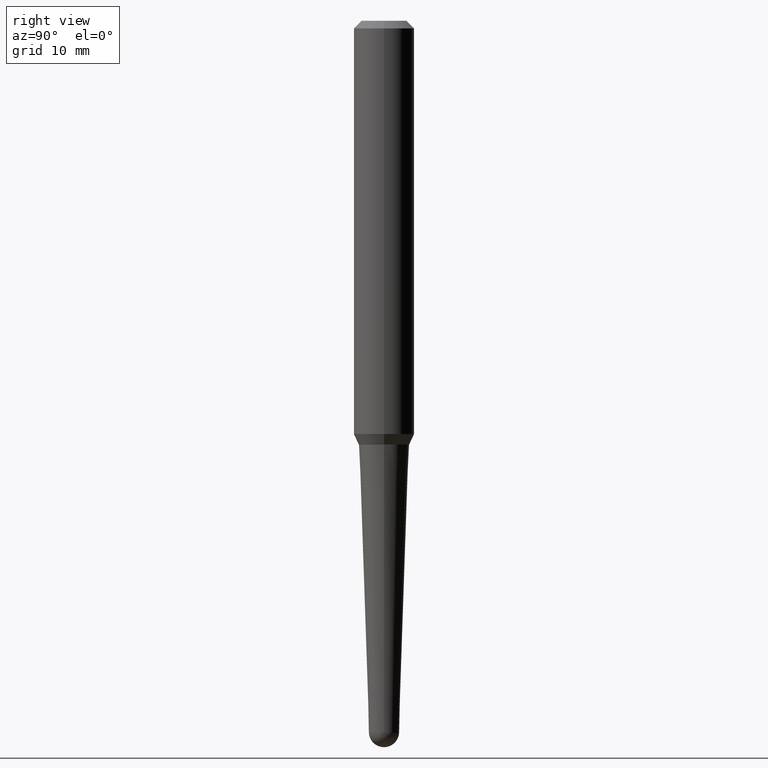
[diagram: clean part render]
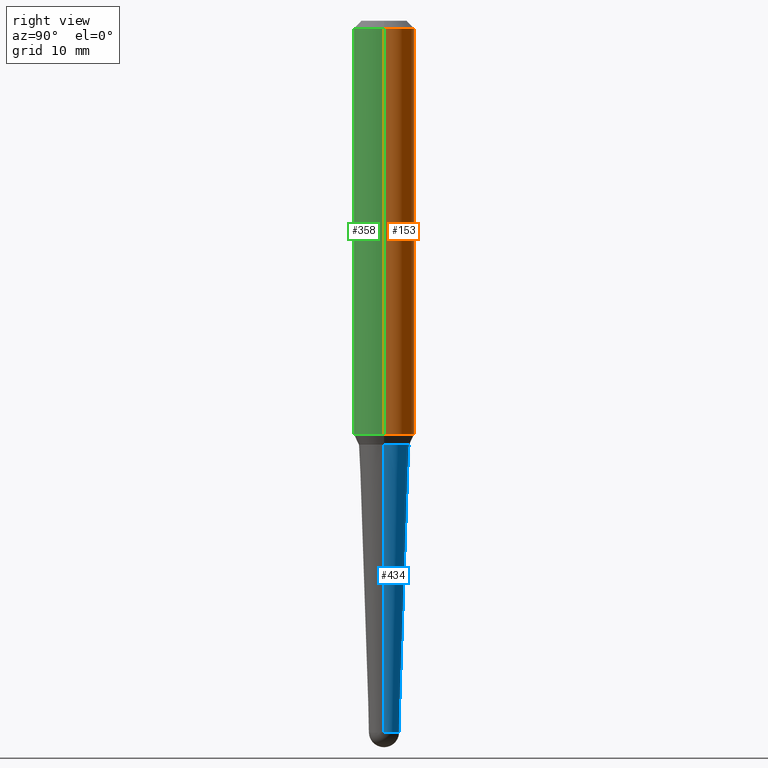
[diagram: same view with three faces highlighted in distinct colors, each labeled with its STEP entity id]
A machine part, right view with three faces highlighted in distinct colors.
Their STEP definitions:

[orange] entity #153 — the highlighted cylindrical surface (edge-blend (fillet) strip) has radius 3.175 mm, axis along (-0, 0, 1).
#6 = FACE_OUTER_BOUND ( 'NONE', #197, .T. ) ;
#10 = CARTESIAN_POINT ( 'NONE',  ( -0.1250000000000000278, -2.145698591350394576E-15, -0.03125000000000004857 ) ) ;
#13 = DIRECTION ( 'NONE',  ( 1.000000000000000000, -6.982962677686267499E-15, 4.852736867747361723E-29 ) ) ;
#16 = AXIS2_PLACEMENT_3D ( 'NONE', #42, #289, #13 ) ;
#37 = ORIENTED_EDGE ( 'NONE', *, *, #140, .T. ) ;
#42 = CARTESIAN_POINT ( 'NONE',  ( -1.450455682483482035E-44, 2.070866303999251778E-30, 5.931196827434296760E-16 ) ) ;
#59 = CARTESIAN_POINT ( 'NONE',  ( 0.1250000000000001943, -6.831515564972979377E-15, -1.706623822952039626 ) ) ;
#70 = DIRECTION ( 'NONE',  ( 1.000000000000000000, -6.982962677686267499E-15, 0.000000000000000000 ) ) ;
#102 = ORIENTED_EDGE ( 'NONE', *, *, #448, .T. ) ;
#113 = VERTEX_POINT ( 'NONE', #10 ) ;
#120 = CIRCLE ( 'NONE', #219, 0.1250000000000001943 ) ;
#136 = AXIS2_PLACEMENT_3D ( 'NONE', #324, #356, #280 ) ;
#140 = EDGE_CURVE ( 'NONE', #152, #113, #225, .T. ) ;
#152 = VERTEX_POINT ( 'NONE', #442 ) ;
#153 = ADVANCED_FACE ( 'NONE', ( #6 ), #296, .T. ) ;
#177 = CIRCLE ( 'NONE', #136, 0.1250000000000000278 ) ;
#197 = EDGE_LOOP ( 'NONE', ( #102, #37, #301, #198 ) ) ;
#198 = ORIENTED_EDGE ( 'NONE', *, *, #389, .F. ) ;
#207 = LINE ( 'NONE', #351, #282 ) ;
#219 = AXIS2_PLACEMENT_3D ( 'NONE', #241, #431, #70 ) ;
#221 = DIRECTION ( 'NONE',  ( -2.445468806185136877E-29, 3.491481338843145188E-15, 1.000000000000000000 ) ) ;
#225 = LINE ( 'NONE', #292, #364 ) ;
#226 = VERTEX_POINT ( 'NONE', #236 ) ;
#236 = CARTESIAN_POINT ( 'NONE',  ( 0.1250000000000000278, -9.819791265496320450E-16, -0.03125000000000004857 ) ) ;
#241 = CARTESIAN_POINT ( 'NONE',  ( 4.173495322921638284E-29, -5.958645230262194461E-15, -1.706623822952039626 ) ) ;
#280 = DIRECTION ( 'NONE',  ( 1.000000000000000000, -6.982962677686267499E-15, 0.000000000000000000 ) ) ;
#282 = VECTOR ( 'NONE', #311, 39.37007874015748143 ) ;
#289 = DIRECTION ( 'NONE',  ( -2.445468806185136597E-29, 3.491481338843145583E-15, 1.000000000000000000 ) ) ;
#292 = CARTESIAN_POINT ( 'NONE',  ( -0.1250000000000001110, 8.881784197001281906E-16, 5.931196827434234637E-16 ) ) ;
#296 = CYLINDRICAL_SURFACE ( 'NONE', #16, 0.1250000000000001110 ) ;
#301 = ORIENTED_EDGE ( 'NONE', *, *, #426, .F. ) ;
#311 = DIRECTION ( 'NONE',  ( -2.445468806185136877E-29, 3.491481338843145188E-15, 1.000000000000000000 ) ) ;
#324 = CARTESIAN_POINT ( 'NONE',  ( 7.642090019328562375E-31, -1.091087918388484597E-16, -0.03125000000000004857 ) ) ;
#351 = CARTESIAN_POINT ( 'NONE',  ( 0.1250000000000001110, -8.728703347107821555E-16, 5.931196827434357896E-16 ) ) ;
#352 = VERTEX_POINT ( 'NONE', #59 ) ;
#356 = DIRECTION ( 'NONE',  ( -2.445468806185136597E-29, 3.491481338843145583E-15, 1.000000000000000000 ) ) ;
#364 = VECTOR ( 'NONE', #221, 39.37007874015748143 ) ;
#389 = EDGE_CURVE ( 'NONE', #352, #226, #207, .T. ) ;
#426 = EDGE_CURVE ( 'NONE', #226, #113, #177, .T. ) ;
#431 = DIRECTION ( 'NONE',  ( -2.445468806185136597E-29, 3.491481338843145583E-15, 1.000000000000000000 ) ) ;
#442 = CARTESIAN_POINT ( 'NONE',  ( -0.1250000000000001943, -5.070466810562068439E-15, -1.706623822952039626 ) ) ;
#448 = EDGE_CURVE ( 'NONE', #352, #152, #120, .T. ) ;

[blue] entity #434 — the highlighted conical surface has half-angle 2 deg.
#3 = CIRCLE ( 'NONE', #62, 0.06246192668869397779 ) ;
#20 = EDGE_CURVE ( 'NONE', #66, #447, #323, .T. ) ;
#22 = VERTEX_POINT ( 'NONE', #391 ) ;
#36 = DIRECTION ( 'NONE',  ( 1.000000000000000000, -6.982962677686269077E-15, 0.000000000000000000 ) ) ;
#55 = ORIENTED_EDGE ( 'NONE', *, *, #20, .T. ) ;
#58 = EDGE_CURVE ( 'NONE', #22, #421, #83, .T. ) ;
#62 = AXIS2_PLACEMENT_3D ( 'NONE', #238, #245, #319 ) ;
#66 = VERTEX_POINT ( 'NONE', #456 ) ;
#68 = AXIS2_PLACEMENT_3D ( 'NONE', #392, #275, #105 ) ;
#73 = DIRECTION ( 'NONE',  ( 1.000000000000000000, -6.982962677686261977E-15, 0.000000000000000000 ) ) ;
#83 = CIRCLE ( 'NONE', #405, 0.1040065102901272243 ) ;
#99 = FACE_OUTER_BOUND ( 'NONE', #100, .T. ) ;
#100 = EDGE_LOOP ( 'NONE', ( #336, #428, #387, #294, #55 ) ) ;
#103 = EDGE_CURVE ( 'NONE', #66, #22, #322, .T. ) ;
#105 = DIRECTION ( 'NONE',  ( 1.000000000000000000, -6.982962677686261977E-15, 0.000000000000000000 ) ) ;
#109 = CARTESIAN_POINT ( 'NONE',  ( 7.188898720077434965E-29, -1.026384211669372732E-14, -2.939681218543906294 ) ) ;
#111 = EDGE_CURVE ( 'NONE', #348, #421, #180, .T. ) ;
#115 = CONICAL_SURFACE ( 'NONE', #68, 0.06246192668869397779, 0.03490658503988653544 ) ;
#139 = CARTESIAN_POINT ( 'NONE',  ( 4.361693028435970673E-16, 0.06246192668868363190, -2.939681218543906294 ) ) ;
#142 = DIRECTION ( 'NONE',  ( -0.03489949670250091368, 3.737330261384646804E-15, 0.9993908270190957621 ) ) ;
#143 = CARTESIAN_POINT ( 'NONE',  ( -0.1040065102901272243, -5.371081639391425565E-15, -1.750000000000000222 ) ) ;
#144 = AXIS2_PLACEMENT_3D ( 'NONE', #109, #240, #73 ) ;
#176 = VECTOR ( 'NONE', #142, 39.37007874015748143 ) ;
#180 = LINE ( 'NONE', #460, #176 ) ;
#238 = CARTESIAN_POINT ( 'NONE',  ( 7.188898720077434965E-29, -1.026384211669372732E-14, -2.939681218543906294 ) ) ;
#240 = DIRECTION ( 'NONE',  ( -2.445468806185136597E-29, 3.491481338843145583E-15, 1.000000000000000000 ) ) ;
#245 = DIRECTION ( 'NONE',  ( -2.445468806185136597E-29, 3.491481338843145583E-15, 1.000000000000000000 ) ) ;
#246 = CARTESIAN_POINT ( 'NONE',  ( 4.279570410823989044E-29, -6.110092342975505460E-15, -1.750000000000000222 ) ) ;
#275 = DIRECTION ( 'NONE',  ( -2.445468806185136597E-29, 3.491481338843145583E-15, 1.000000000000000000 ) ) ;
#294 = ORIENTED_EDGE ( 'NONE', *, *, #103, .F. ) ;
#319 = DIRECTION ( 'NONE',  ( 1.000000000000000000, -6.982962677686261977E-15, 0.000000000000000000 ) ) ;
#322 = LINE ( 'NONE', #354, #375 ) ;
#323 = CIRCLE ( 'NONE', #144, 0.06246192668869397779 ) ;
#336 = ORIENTED_EDGE ( 'NONE', *, *, #441, .T. ) ;
#348 = VERTEX_POINT ( 'NONE', #452 ) ;
#354 = CARTESIAN_POINT ( 'NONE',  ( 0.06246192668869397779, -1.070001141953725324E-14, -2.939681218543906294 ) ) ;
#375 = VECTOR ( 'NONE', #459, 39.37007874015748143 ) ;
#387 = ORIENTED_EDGE ( 'NONE', *, *, #58, .F. ) ;
#391 = CARTESIAN_POINT ( 'NONE',  ( 0.1040065102901272243, -6.836365922567855288E-15, -1.750000000000000222 ) ) ;
#392 = CARTESIAN_POINT ( 'NONE',  ( 7.188898720077434965E-29, -1.026384211669372732E-14, -2.939681218543906294 ) ) ;
#393 = DIRECTION ( 'NONE',  ( -2.445468806185136597E-29, 3.491481338843145583E-15, 1.000000000000000000 ) ) ;
#405 = AXIS2_PLACEMENT_3D ( 'NONE', #246, #393, #36 ) ;
#421 = VERTEX_POINT ( 'NONE', #143 ) ;
#428 = ORIENTED_EDGE ( 'NONE', *, *, #111, .T. ) ;
#434 = ADVANCED_FACE ( 'NONE', ( #99 ), #115, .T. ) ;
#441 = EDGE_CURVE ( 'NONE', #447, #348, #3, .T. ) ;
#447 = VERTEX_POINT ( 'NONE', #139 ) ;
#452 = CARTESIAN_POINT ( 'NONE',  ( -0.06246192668869397779, -7.595552536691419221E-15, -2.939681218543906294 ) ) ;
#456 = CARTESIAN_POINT ( 'NONE',  ( 0.06246192668869397779, -8.768188671052554661E-15, -2.939681218543906294 ) ) ;
#459 = DIRECTION ( 'NONE',  ( 0.03489949670250091368, 3.245652539804591788E-15, 0.9993908270190957621 ) ) ;
#460 = CARTESIAN_POINT ( 'NONE',  ( -0.06246192668869397779, -9.820023433991413666E-15, -2.939681218543906294 ) ) ;

[green] entity #358 — the highlighted cylindrical surface (edge-blend (fillet) strip) has radius 3.175 mm, axis along (-0, 0, 1).
#4 = ORIENTED_EDGE ( 'NONE', *, *, #273, .F. ) ;
#10 = CARTESIAN_POINT ( 'NONE',  ( -0.1250000000000000278, -2.145698591350394576E-15, -0.03125000000000004857 ) ) ;
#25 = AXIS2_PLACEMENT_3D ( 'NONE', #196, #373, #54 ) ;
#54 = DIRECTION ( 'NONE',  ( 1.000000000000000000, -6.982962677686267499E-15, 0.000000000000000000 ) ) ;
#59 = CARTESIAN_POINT ( 'NONE',  ( 0.1250000000000001943, -6.831515564972979377E-15, -1.706623822952039626 ) ) ;
#87 = DIRECTION ( 'NONE',  ( -2.445468806185136597E-29, 3.491481338843145583E-15, 1.000000000000000000 ) ) ;
#97 = DIRECTION ( 'NONE',  ( 1.000000000000000000, -6.982962677686267499E-15, 4.852736867747361723E-29 ) ) ;
#113 = VERTEX_POINT ( 'NONE', #10 ) ;
#140 = EDGE_CURVE ( 'NONE', #152, #113, #225, .T. ) ;
#152 = VERTEX_POINT ( 'NONE', #442 ) ;
#183 = ORIENTED_EDGE ( 'NONE', *, *, #389, .T. ) ;
#196 = CARTESIAN_POINT ( 'NONE',  ( 4.173495322921638284E-29, -5.958645230262194461E-15, -1.706623822952039626 ) ) ;
#207 = LINE ( 'NONE', #351, #282 ) ;
#211 = CIRCLE ( 'NONE', #331, 0.1250000000000000278 ) ;
#221 = DIRECTION ( 'NONE',  ( -2.445468806185136877E-29, 3.491481338843145188E-15, 1.000000000000000000 ) ) ;
#224 = CIRCLE ( 'NONE', #25, 0.1250000000000001943 ) ;
#225 = LINE ( 'NONE', #292, #364 ) ;
#226 = VERTEX_POINT ( 'NONE', #236 ) ;
#227 = CARTESIAN_POINT ( 'NONE',  ( 7.642090019328562375E-31, -1.091087918388484597E-16, -0.03125000000000004857 ) ) ;
#236 = CARTESIAN_POINT ( 'NONE',  ( 0.1250000000000000278, -9.819791265496320450E-16, -0.03125000000000004857 ) ) ;
#252 = EDGE_CURVE ( 'NONE', #152, #352, #224, .T. ) ;
#267 = CARTESIAN_POINT ( 'NONE',  ( -1.450455682483482035E-44, 2.070866303999251778E-30, 5.931196827434296760E-16 ) ) ;
#271 = ORIENTED_EDGE ( 'NONE', *, *, #252, .T. ) ;
#273 = EDGE_CURVE ( 'NONE', #113, #226, #211, .T. ) ;
#282 = VECTOR ( 'NONE', #311, 39.37007874015748143 ) ;
#292 = CARTESIAN_POINT ( 'NONE',  ( -0.1250000000000001110, 8.881784197001281906E-16, 5.931196827434234637E-16 ) ) ;
#304 = FACE_OUTER_BOUND ( 'NONE', #388, .T. ) ;
#311 = DIRECTION ( 'NONE',  ( -2.445468806185136877E-29, 3.491481338843145188E-15, 1.000000000000000000 ) ) ;
#331 = AXIS2_PLACEMENT_3D ( 'NONE', #227, #87, #415 ) ;
#339 = DIRECTION ( 'NONE',  ( -2.445468806185136597E-29, 3.491481338843145583E-15, 1.000000000000000000 ) ) ;
#351 = CARTESIAN_POINT ( 'NONE',  ( 0.1250000000000001110, -8.728703347107821555E-16, 5.931196827434357896E-16 ) ) ;
#352 = VERTEX_POINT ( 'NONE', #59 ) ;
#358 = ADVANCED_FACE ( 'NONE', ( #304 ), #413, .T. ) ;
#364 = VECTOR ( 'NONE', #221, 39.37007874015748143 ) ;
#373 = DIRECTION ( 'NONE',  ( -2.445468806185136597E-29, 3.491481338843145583E-15, 1.000000000000000000 ) ) ;
#388 = EDGE_LOOP ( 'NONE', ( #445, #271, #183, #4 ) ) ;
#389 = EDGE_CURVE ( 'NONE', #352, #226, #207, .T. ) ;
#406 = AXIS2_PLACEMENT_3D ( 'NONE', #267, #339, #97 ) ;
#413 = CYLINDRICAL_SURFACE ( 'NONE', #406, 0.1250000000000001110 ) ;
#415 = DIRECTION ( 'NONE',  ( 1.000000000000000000, -6.982962677686267499E-15, 0.000000000000000000 ) ) ;
#442 = CARTESIAN_POINT ( 'NONE',  ( -0.1250000000000001943, -5.070466810562068439E-15, -1.706623822952039626 ) ) ;
#445 = ORIENTED_EDGE ( 'NONE', *, *, #140, .F. ) ;